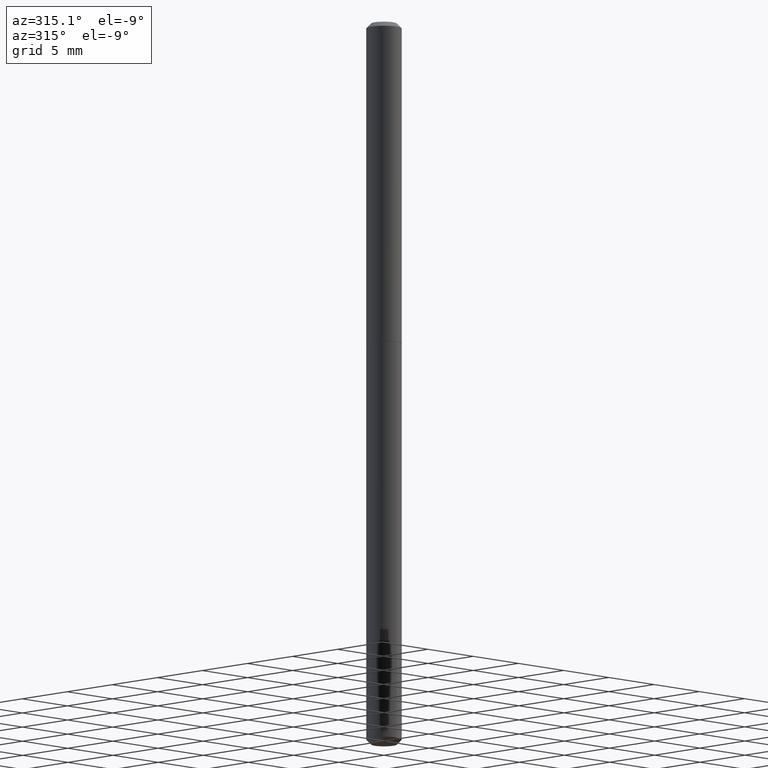
[diagram: clean part render]
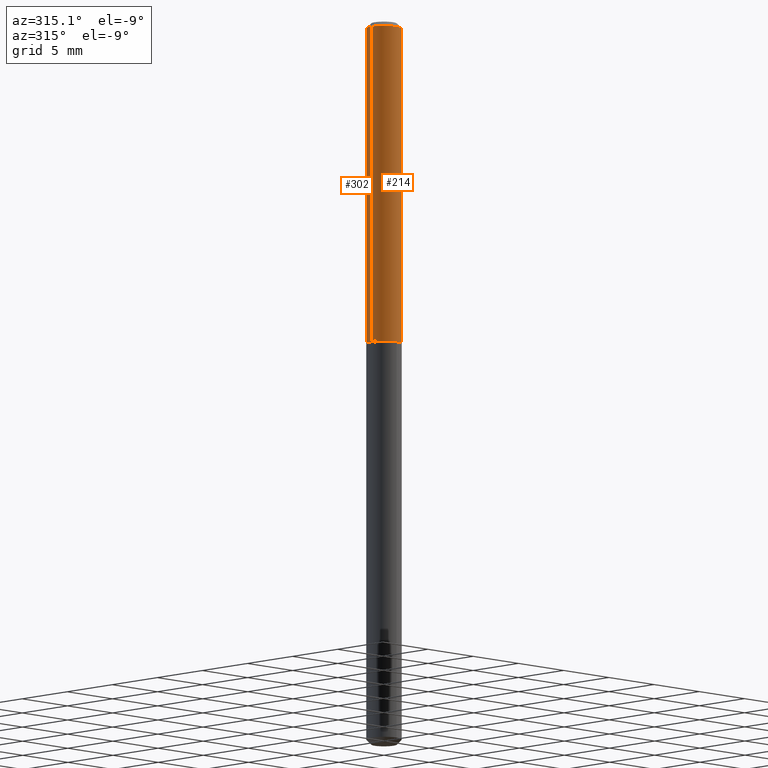
[diagram: same view with one multi-face feature highlighted, each face labeled with its STEP entity id]
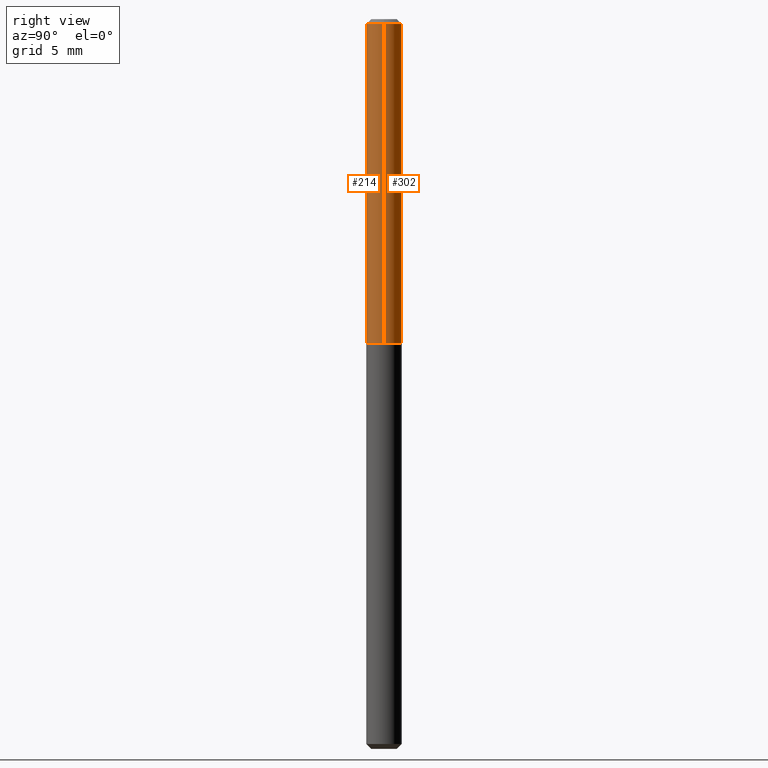
[diagram: same view with one multi-face feature highlighted, each face labeled with its STEP entity id]
A machine part, auxiliary view. The highlighted faces form ONE feature: a constant-radius fillet chain: 2 tangent blend faces with common blend radius 1.3894 mm. The faces share edges in the B-rep.
A second angle (right view) of the same feature is appended — it is thin or edge-on in the first view.
Their STEP definitions:
[1] entity #302 (Cylinder):
#9 = CARTESIAN_POINT ( 'NONE',  ( 0.000000000000000000, 0.000000000000000000, 0.000000000000000000 ) ) ;
#23 = ORIENTED_EDGE ( 'NONE', *, *, #80, .F. ) ;
#80 = EDGE_CURVE ( 'NONE', #369, #119, #287, .T. ) ;
#86 = EDGE_CURVE ( 'NONE', #368, #117, #343, .T. ) ;
#94 = CARTESIAN_POINT ( 'NONE',  ( 0.05470000000000006107, -3.819680584694392296E-16, 2.667268696360380107E-30 ) ) ;
#95 = CARTESIAN_POINT ( 'NONE',  ( 0.05469999999999999862, -4.343402785520863089E-16, -0.01500000000000009832 ) ) ;
#101 = CARTESIAN_POINT ( 'NONE',  ( 2.444246071782043795E-29, -3.489735598173723685E-15, -0.9994999999999999440 ) ) ;
#102 = EDGE_CURVE ( 'NONE', #368, #369, #251, .T. ) ;
#107 = FACE_OUTER_BOUND ( 'NONE', #361, .T. ) ;
#110 = CYLINDRICAL_SURFACE ( 'NONE', #244, 0.05470000000000006107 ) ;
#113 = EDGE_CURVE ( 'NONE', #117, #119, #256, .T. ) ;
#117 = VERTEX_POINT ( 'NONE', #218 ) ;
#119 = VERTEX_POINT ( 'NONE', #317 ) ;
#148 = VECTOR ( 'NONE', #196, 39.37007874015748143 ) ;
#164 = DIRECTION ( 'NONE',  ( -2.445468806185136597E-29, 3.491481338843145583E-15, 1.000000000000000000 ) ) ;
#170 = DIRECTION ( 'NONE',  ( -2.445468806185136597E-29, 3.491481338843145583E-15, 1.000000000000000000 ) ) ;
#196 = DIRECTION ( 'NONE',  ( -2.445468806185136877E-29, 3.491481338843145188E-15, 1.000000000000000000 ) ) ;
#218 = CARTESIAN_POINT ( 'NONE',  ( -0.05470000000000011658, -3.101068721712948301E-15, -0.9994999999999999440 ) ) ;
#225 = CARTESIAN_POINT ( 'NONE',  ( 3.668203209277728735E-31, -5.237222008264752911E-17, -0.01500000000000009832 ) ) ;
#244 = AXIS2_PLACEMENT_3D ( 'NONE', #9, #170, #396 ) ;
#251 = LINE ( 'NONE', #94, #266 ) ;
#256 = LINE ( 'NONE', #357, #148 ) ;
#262 = ORIENTED_EDGE ( 'NONE', *, *, #113, .T. ) ;
#266 = VECTOR ( 'NONE', #347, 39.37007874015748143 ) ;
#287 = CIRCLE ( 'NONE', #329, 0.05469999999999999862 ) ;
#289 = DIRECTION ( 'NONE',  ( 1.000000000000000000, -6.982962677686262766E-15, 0.000000000000000000 ) ) ;
#302 = ADVANCED_FACE ( 'NONE', ( #107 ), #110, .T. ) ;
#303 = ORIENTED_EDGE ( 'NONE', *, *, #102, .F. ) ;
#317 = CARTESIAN_POINT ( 'NONE',  ( -0.05469999999999999862, -1.382387032667409604E-15, -0.01500000000000009832 ) ) ;
#329 = AXIS2_PLACEMENT_3D ( 'NONE', #225, #164, #388 ) ;
#343 = CIRCLE ( 'NONE', #370, 0.05470000000000011658 ) ;
#347 = DIRECTION ( 'NONE',  ( -2.445468806185136877E-29, 3.491481338843145188E-15, 1.000000000000000000 ) ) ;
#357 = CARTESIAN_POINT ( 'NONE',  ( -0.05470000000000006107, 3.886668764607752356E-16, -2.690657494369436160E-30 ) ) ;
#361 = EDGE_LOOP ( 'NONE', ( #410, #262, #23, #303 ) ) ;
#368 = VERTEX_POINT ( 'NONE', #385 ) ;
#369 = VERTEX_POINT ( 'NONE', #95 ) ;
#370 = AXIS2_PLACEMENT_3D ( 'NONE', #101, #384, #289 ) ;
#384 = DIRECTION ( 'NONE',  ( -2.445468806185136597E-29, 3.491481338843145583E-15, 1.000000000000000000 ) ) ;
#385 = CARTESIAN_POINT ( 'NONE',  ( 0.05470000000000011658, -3.871703656643162865E-15, -0.9994999999999999440 ) ) ;
#388 = DIRECTION ( 'NONE',  ( 1.000000000000000000, -6.982962677686266711E-15, 0.000000000000000000 ) ) ;
#396 = DIRECTION ( 'NONE',  ( 1.000000000000000000, -6.982962677686266711E-15, 4.876176775795936353E-29 ) ) ;
#410 = ORIENTED_EDGE ( 'NONE', *, *, #86, .T. ) ;
[2] entity #214 (Cylinder):
#11 = DIRECTION ( 'NONE',  ( -2.445468806185136597E-29, 3.491481338843145583E-15, 1.000000000000000000 ) ) ;
#45 = AXIS2_PLACEMENT_3D ( 'NONE', #291, #11, #201 ) ;
#53 = ORIENTED_EDGE ( 'NONE', *, *, #102, .T. ) ;
#94 = CARTESIAN_POINT ( 'NONE',  ( 0.05470000000000006107, -3.819680584694392296E-16, 2.667268696360380107E-30 ) ) ;
#95 = CARTESIAN_POINT ( 'NONE',  ( 0.05469999999999999862, -4.343402785520863089E-16, -0.01500000000000009832 ) ) ;
#102 = EDGE_CURVE ( 'NONE', #368, #369, #251, .T. ) ;
#113 = EDGE_CURVE ( 'NONE', #117, #119, #256, .T. ) ;
#117 = VERTEX_POINT ( 'NONE', #218 ) ;
#119 = VERTEX_POINT ( 'NONE', #317 ) ;
#129 = DIRECTION ( 'NONE',  ( 1.000000000000000000, -6.982962677686266711E-15, 4.876176775795936353E-29 ) ) ;
#131 = DIRECTION ( 'NONE',  ( 1.000000000000000000, -6.982962677686262766E-15, 0.000000000000000000 ) ) ;
#141 = CARTESIAN_POINT ( 'NONE',  ( 0.000000000000000000, 0.000000000000000000, 0.000000000000000000 ) ) ;
#147 = EDGE_LOOP ( 'NONE', ( #339, #177, #53, #230 ) ) ;
#148 = VECTOR ( 'NONE', #196, 39.37007874015748143 ) ;
#161 = EDGE_CURVE ( 'NONE', #119, #369, #400, .T. ) ;
#165 = AXIS2_PLACEMENT_3D ( 'NONE', #141, #295, #129 ) ;
#175 = CYLINDRICAL_SURFACE ( 'NONE', #165, 0.05470000000000006107 ) ;
#176 = AXIS2_PLACEMENT_3D ( 'NONE', #261, #395, #131 ) ;
#177 = ORIENTED_EDGE ( 'NONE', *, *, #242, .T. ) ;
#196 = DIRECTION ( 'NONE',  ( -2.445468806185136877E-29, 3.491481338843145188E-15, 1.000000000000000000 ) ) ;
#201 = DIRECTION ( 'NONE',  ( 1.000000000000000000, -6.982962677686266711E-15, 0.000000000000000000 ) ) ;
#214 = ADVANCED_FACE ( 'NONE', ( #399 ), #175, .T. ) ;
#218 = CARTESIAN_POINT ( 'NONE',  ( -0.05470000000000011658, -3.101068721712948301E-15, -0.9994999999999999440 ) ) ;
#230 = ORIENTED_EDGE ( 'NONE', *, *, #161, .F. ) ;
#242 = EDGE_CURVE ( 'NONE', #117, #368, #415, .T. ) ;
#251 = LINE ( 'NONE', #94, #266 ) ;
#256 = LINE ( 'NONE', #357, #148 ) ;
#261 = CARTESIAN_POINT ( 'NONE',  ( 2.444246071782043795E-29, -3.489735598173723685E-15, -0.9994999999999999440 ) ) ;
#266 = VECTOR ( 'NONE', #347, 39.37007874015748143 ) ;
#291 = CARTESIAN_POINT ( 'NONE',  ( 3.668203209277728735E-31, -5.237222008264752911E-17, -0.01500000000000009832 ) ) ;
#295 = DIRECTION ( 'NONE',  ( -2.445468806185136597E-29, 3.491481338843145583E-15, 1.000000000000000000 ) ) ;
#317 = CARTESIAN_POINT ( 'NONE',  ( -0.05469999999999999862, -1.382387032667409604E-15, -0.01500000000000009832 ) ) ;
#339 = ORIENTED_EDGE ( 'NONE', *, *, #113, .F. ) ;
#347 = DIRECTION ( 'NONE',  ( -2.445468806185136877E-29, 3.491481338843145188E-15, 1.000000000000000000 ) ) ;
#357 = CARTESIAN_POINT ( 'NONE',  ( -0.05470000000000006107, 3.886668764607752356E-16, -2.690657494369436160E-30 ) ) ;
#368 = VERTEX_POINT ( 'NONE', #385 ) ;
#369 = VERTEX_POINT ( 'NONE', #95 ) ;
#385 = CARTESIAN_POINT ( 'NONE',  ( 0.05470000000000011658, -3.871703656643162865E-15, -0.9994999999999999440 ) ) ;
#395 = DIRECTION ( 'NONE',  ( -2.445468806185136597E-29, 3.491481338843145583E-15, 1.000000000000000000 ) ) ;
#399 = FACE_OUTER_BOUND ( 'NONE', #147, .T. ) ;
#400 = CIRCLE ( 'NONE', #45, 0.05469999999999999862 ) ;
#415 = CIRCLE ( 'NONE', #176, 0.05470000000000011658 ) ;